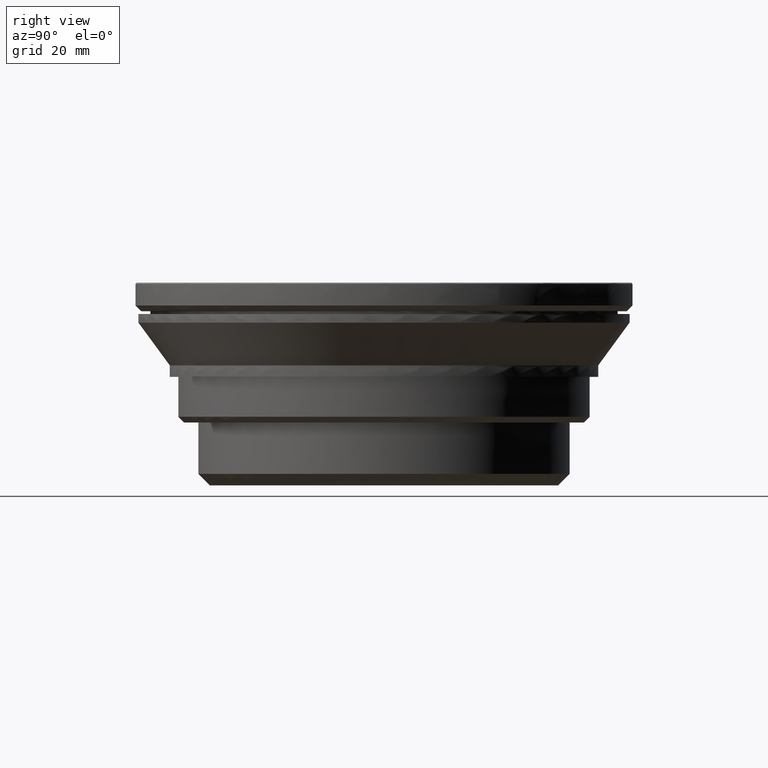
[diagram: clean part render]
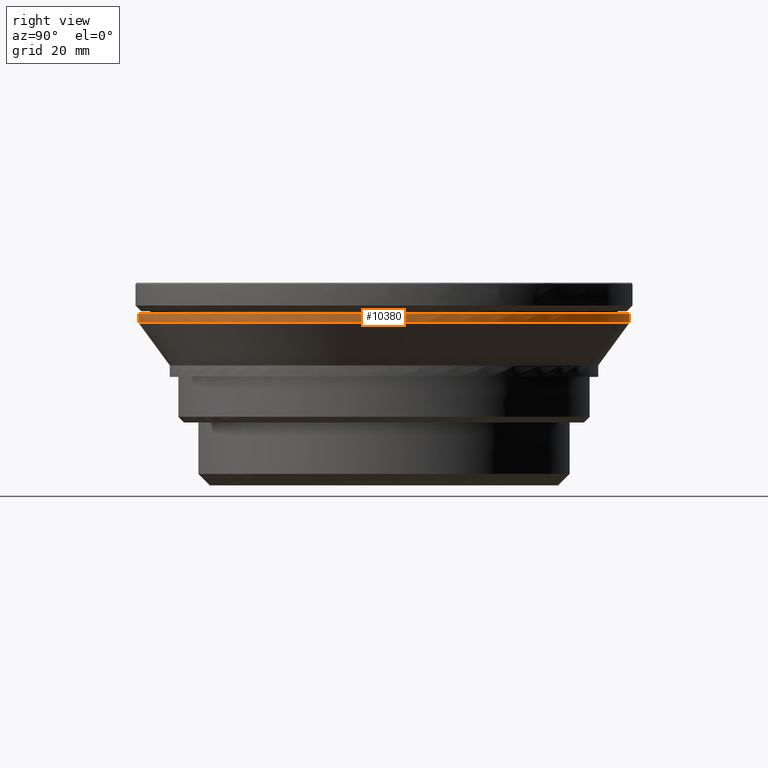
[diagram: same view with one face highlighted and labeled with its STEP entity id]
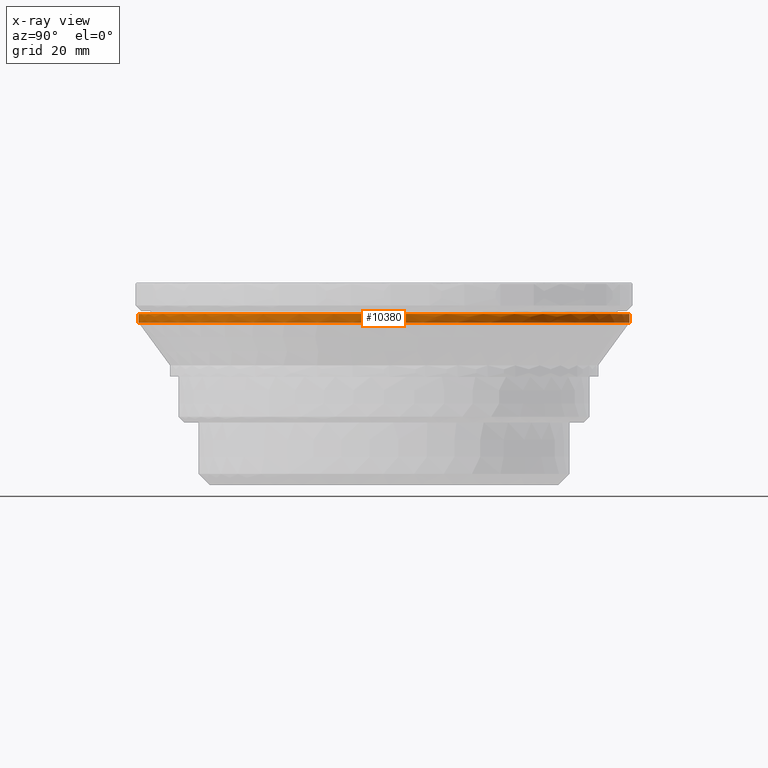
[diagram: x-ray of the same camera — body ghosted, the highlighted face saturated]
A machine part, right view. The second image highlights one B-rep face of the part: STEP entity #10380.
The next image is the same camera in x-ray: the body ghosted, the highlighted face saturated — about 0% of this face is hidden behind the body in this view.
In plain terms, the highlighted face is a freeform B-spline surface patch.
Its self-contained STEP definition (entity closure, byte-faithful):
#68 = CARTESIAN_POINT ( 'NONE',  ( 34.62573433230000575, 25.73980856057000111, 48.52656779054001390 ) ) ;
#204 = CARTESIAN_POINT ( 'NONE',  ( -3.024744083673924777E-10, 42.99995552849512848, 49.52656779053830149 ) ) ;
#225 = CARTESIAN_POINT ( 'NONE',  ( 43.03607866307999785, 3.061887677271999841, 48.97497165960000132 ) ) ;
#293 = CARTESIAN_POINT ( 'NONE',  ( 32.40207242928179454, -28.40910610954777837, 50.02656779054000680 ) ) ;
#297 = CARTESIAN_POINT ( 'NONE',  ( 43.03607866307999785, 3.061887677271999841, 49.57816392147999807 ) ) ;
#364 = CARTESIAN_POINT ( 'NONE',  ( 11.15808490330146086, -41.62293537158313228, 50.02656779053999969 ) ) ;
#368 = CARTESIAN_POINT ( 'NONE',  ( 26.02271475302000425, -34.41362432388000059, 50.18135618336999926 ) ) ;
#439 = CARTESIAN_POINT ( 'NONE',  ( 42.16909083423000482, 9.123979453016000107, 48.97497165960000132 ) ) ;
#511 = CARTESIAN_POINT ( 'NONE',  ( -2.699992339761000171, -42.91514932241999958, 50.18135618336999926 ) ) ;
#1065 = CARTESIAN_POINT ( 'NONE',  ( 34.62573433230000575, 25.73980856057000111, 50.18135618336999926 ) ) ;
#1170 = CARTESIAN_POINT ( 'NONE',  ( 40.45258117051000113, -15.00226314533999883, 48.52656779054001390 ) ) ;
#1186 = CARTESIAN_POINT ( 'NONE',  ( 37.32182281283186853, 21.54190600422668211, 50.02656779054000680 ) ) ;
#1322 = CARTESIAN_POINT ( 'NONE',  ( 42.16909083423000482, 9.123979453016000107, 48.37177939771000013 ) ) ;
#1365 = CARTESIAN_POINT ( 'NONE',  ( 4.403482717900374736E-15, -42.99996084820945441, 48.52658019561960145 ) ) ;
#1371 = CARTESIAN_POINT ( 'NONE',  ( 2.384324692900049905E-15, 42.99997776424759621, 50.02656779053999969 ) ) ;
#1390 = CARTESIAN_POINT ( 'NONE',  ( 43.03607866307999785, -3.061887677271999841, 48.97497165960000132 ) ) ;
#1461 = CARTESIAN_POINT ( 'NONE',  ( 15.33328294012000015, 40.32827360094999847, 50.18135618336999926 ) ) ;
#1533 = CARTESIAN_POINT ( 'NONE',  ( 42.16909083423000482, -9.123979453016000107, 48.97497165960000132 ) ) ;
#1606 = CARTESIAN_POINT ( 'NONE',  ( 15.33328294012000015, -40.32827360094999847, 49.57816392147999807 ) ) ;
#1702 = CARTESIAN_POINT ( 'NONE',  ( -2.699992339760000082, 42.91514932241999958, 48.37177939771000013 ) ) ;
#1750 = CARTESIAN_POINT ( 'NONE',  ( 9.469264809638000102, -42.09290035976000155, 48.97497165960000132 ) ) ;
#1757 = CARTESIAN_POINT ( 'NONE',  ( 2.384324692900049905E-15, 42.99997776424759621, 50.02656779053999969 ) ) ;
#1774 = CARTESIAN_POINT ( 'NONE',  ( -2.699992339760000082, 42.91514932241999958, 48.97497165960000132 ) ) ;
#1828 = CARTESIAN_POINT ( 'NONE',  ( -2.699992339761000171, -42.91514932241999958, 48.37177939771000013 ) ) ;
#1850 = CARTESIAN_POINT ( 'NONE',  ( 9.469264809638000102, 42.09290035976000155, 50.18135618336999926 ) ) ;
#1875 = EDGE_LOOP ( 'NONE', ( #12770, #10562, #2521, #9757 ) ) ;
#1901 = CARTESIAN_POINT ( 'NONE',  ( -2.699992339761000171, -42.91514932241999958, 49.57816392147999807 ) ) ;
#1965 = CARTESIAN_POINT ( 'NONE',  ( 3.028125410685394895E-15, 42.99996084820940467, 48.52658019561970093 ) ) ;
#2121 = CARTESIAN_POINT ( 'NONE',  ( 15.33328294012000015, 40.32827360094999847, 48.52656779054001390 ) ) ;
#2157 = CARTESIAN_POINT ( 'NONE',  ( 42.16909083423000482, -9.123979453016000107, 49.57816392147999807 ) ) ;
#2225 = CARTESIAN_POINT ( 'NONE',  ( 37.92112979750000079, 20.57831717466000043, 49.57816392147999807 ) ) ;
#2249 = EDGE_CURVE ( 'NONE', #12814, #5727, #2453, .T. ) ;
#2453 = B_SPLINE_CURVE_WITH_KNOTS ( 'NONE', 3,
 ( #8902, #3423, #5749, #4584, #14321, #7944, #5680, #10072, #8762, #6575, #1170, #12333, #13362, #6847, #11173, #7812, #5614, #68, #13222, #4517, #11304, #2121, #11239, #3216, #7880, #7672 ),
 .UNSPECIFIED., .F., .F.,
 ( 4, 1, 1, 1, 1, 1, 1, 1, 1, 1, 1, 1, 1, 1, 1, 1, 1, 1, 1, 1, 1, 1, 1, 4 ),
 ( 0.000000000000000000, 0.02521740269227033121, 0.07043479291205091697, 0.1156521831318124277, 0.1608695733515739246, 0.2060869635713672432, 0.2513043537911287539, 0.2965217440108902647, 0.3417391342306517199, 0.3869565244503495594, 0.4321739146703656442, 0.4773913048900634837, 0.5226086951097612676, 0.5678260853294592181, 0.6130434755491570575, 0.6582608657691731979, 0.7034782559888710374, 0.7486956462085687658, 0.7939130364282667163, 0.8391304266482828567, 0.8843478168679808071, 0.9295652070876785356, 0.9747825973073763750, 1.000000000000000000 ),
 .UNSPECIFIED. ) ;
#2480 = CARTESIAN_POINT ( 'NONE',  ( 20.88840373185000132, 37.75120944145999857, 50.18135618336999926 ) ) ;
#2521 = ORIENTED_EDGE ( 'NONE', *, *, #14112, .T. ) ;
#2547 = CARTESIAN_POINT ( 'NONE',  ( 34.18456384517813973, 26.23713403547234435, 50.02656779053999969 ) ) ;
#2551 = CARTESIAN_POINT ( 'NONE',  ( 42.16909083423000482, 9.123979453016000107, 49.57816392147999807 ) ) ;
#2620 = CARTESIAN_POINT ( 'NONE',  ( 5.619698015637597521, 42.72458901911308971, 50.02656779054000680 ) ) ;
#2624 = CARTESIAN_POINT ( 'NONE',  ( 30.63278251530000063, -30.38275593828999988, 50.18135618336999926 ) ) ;
#2790 = FACE_OUTER_BOUND ( 'NONE', #1875, .T. ) ;
#2841 = CARTESIAN_POINT ( 'NONE',  ( 3.414479186604999938, -43.00953997135999884, 48.37177939771000013 ) ) ;
#2937 = CARTESIAN_POINT ( 'NONE',  ( 3.414479186604999938, 43.00953997135999884, 48.97497165960000132 ) ) ;
#3216 = CARTESIAN_POINT ( 'NONE',  ( 4.307171403419838285, 42.87439446863787396, 48.52656779054001390 ) ) ;
#3250 = CARTESIAN_POINT ( 'NONE',  ( 9.469264809638000102, 42.09290035976000155, 48.97497165960000132 ) ) ;
#3296 = B_SPLINE_SURFACE_WITH_KNOTS ( 'NONE', 3, 3, ( 
 ( #4031, #7247, #1774, #1702 ),
 ( #7320, #10610, #6227, #8488 ),
 ( #12946, #6303, #2937, #11852 ),
 ( #1850, #10756, #3250, #8170 ),
 ( #1461, #5984, #6676, #12560 ),
 ( #2480, #11535, #12232, #8797 ),
 ( #7707, #6933, #12635, #10225 ),
 ( #12163, #13584, #9269, #11388 ),
 ( #1065, #3323, #9126, #7776 ),
 ( #8866, #2225, #10439, #11461 ),
 ( #8029, #11138, #5511, #7079 ),
 ( #10367, #2551, #439, #1322 ),
 ( #5769, #297, #225, #4668 ),
 ( #3576, #12488, #1390, #13731 ),
 ( #5840, #2157, #1533, #4739 ),
 ( #10294, #9194, #9966, #3720 ),
 ( #13657, #6609, #11068, #3646 ),
 ( #8099, #7006, #14428, #13258 ),
 ( #2624, #4415, #5914, #4813 ),
 ( #368, #13328, #3863, #8391 ),
 ( #8243, #4958, #6279, #8539 ),
 ( #6057, #1606, #12849, #9560 ),
 ( #6130, #11829, #1750, #12922 ),
 ( #8315, #6356, #7372, #2841 ),
 ( #3938, #4887, #7153, #9416 ),
 ( #511, #1901, #14022, #1828 ) ),
 .UNSPECIFIED., .F., .F., .F.,
 ( 4, 1, 1, 1, 1, 1, 1, 1, 1, 1, 1, 1, 1, 1, 1, 1, 1, 1, 1, 1, 1, 1, 1, 4 ),
 ( 4, 4 ),
 ( -3.204424506661999850, -3.062369882325000070, -2.920315257988999935, -2.778260633653000244, -2.636206009317000110, -2.494151384979999886, -2.352096760643999751, -2.210042136308000060, -2.067987511971999925, -1.925932887635000146, -1.783878263299000011, -1.641823638962999876, -1.499769014626999963, -1.357714390290999829, -1.215659765954000049, -1.073605141618000136, -0.9315505172818000501, -0.7894958929456000751, -0.6474412686093999891, -0.5053866442730999831, -0.3633320199369000081, -0.2212773956006999776, -0.07922277126443999506, 0.06283185307179998957 ),
 ( 6.336539996697000632, 8.146116782356999764 ),
 .UNSPECIFIED. ) ;
#3323 = CARTESIAN_POINT ( 'NONE',  ( 34.62573433230000575, 25.73980856057000111, 49.57816392147999807 ) ) ;
#3423 = CARTESIAN_POINT ( 'NONE',  ( 1.135527612084783255, -42.99994780695022456, 48.52656779054001390 ) ) ;
#3504 = CARTESIAN_POINT ( 'NONE',  ( 41.62294181252619296, -11.15808618194081703, 50.02656779053999259 ) ) ;
#3576 = CARTESIAN_POINT ( 'NONE',  ( 43.03607866307999785, -3.061887677271999841, 50.18135618336999926 ) ) ;
#3646 = CARTESIAN_POINT ( 'NONE',  ( 37.92112979750000079, -20.57831717466000043, 48.37177939771000013 ) ) ;
#3715 = CARTESIAN_POINT ( 'NONE',  ( 32.40207707318958086, 28.40911075196675739, 50.02656779054000680 ) ) ;
#3720 = CARTESIAN_POINT ( 'NONE',  ( 40.45258117051000113, -15.00226314533999883, 48.37177939771000013 ) ) ;
#3863 = CARTESIAN_POINT ( 'NONE',  ( 26.02271475302000425, -34.41362432388000059, 48.97497165960000132 ) ) ;
#3938 = CARTESIAN_POINT ( 'NONE',  ( -0.6678938679840999981, -43.04299812159000282, 50.18135618336999926 ) ) ;
#4031 = CARTESIAN_POINT ( 'NONE',  ( -2.699992339760000082, 42.91514932241999958, 50.18135618336999926 ) ) ;
#4051 = CARTESIAN_POINT ( 'NONE',  ( 4.403482717900374736E-15, -42.99996084820945441, 48.52658019561960145 ) ) ;
#4077 = CARTESIAN_POINT ( 'NONE',  ( 2.823403400073611014, 43.00000000000000000, 50.02656779053999969 ) ) ;
#4415 = CARTESIAN_POINT ( 'NONE',  ( 30.63278251530000063, -30.38275593828999988, 49.57816392147999807 ) ) ;
#4439 = CARTESIAN_POINT ( 'NONE',  ( 1.802542185299634912E-15, -42.99997776424764595, 50.02656779053999969 ) ) ;
#4517 = CARTESIAN_POINT ( 'NONE',  ( 26.02271475302000425, 34.41362432388000059, 48.52656779054001390 ) ) ;
#4584 = CARTESIAN_POINT ( 'NONE',  ( 9.469264809638000102, -42.09290035976000155, 48.52656779054001390 ) ) ;
#4668 = CARTESIAN_POINT ( 'NONE',  ( 43.03607866307999785, 3.061887677271999841, 48.37177939771000013 ) ) ;
#4735 = CARTESIAN_POINT ( 'NONE',  ( 34.18456930553566053, -26.23713768152826731, 50.02656779053999969 ) ) ;
#4739 = CARTESIAN_POINT ( 'NONE',  ( 42.16909083423000482, -9.123979453016000107, 48.37177939771000013 ) ) ;
#4809 = CARTESIAN_POINT ( 'NONE',  ( 40.80730576552461031, -13.84685537705539815, 50.02656779053999259 ) ) ;
#4813 = CARTESIAN_POINT ( 'NONE',  ( 30.63278251530000063, -30.38275593828999988, 48.37177939771000013 ) ) ;
#4887 = CARTESIAN_POINT ( 'NONE',  ( -0.6678938679840999981, -43.04299812159000282, 49.57816392147999807 ) ) ;
#4932 = VERTEX_POINT ( 'NONE', #1757 ) ;
#4958 = CARTESIAN_POINT ( 'NONE',  ( 20.88840373185000132, -37.75120944145999857, 49.57816392147999807 ) ) ;
#5000 = CARTESIAN_POINT ( 'NONE',  ( 1.802542185299634912E-15, -42.99997776424764595, 50.02656779053999969 ) ) ;
#5028 = CARTESIAN_POINT ( 'NONE',  ( 13.84685537758429597, 40.80730576558926970, 50.02656779054000680 ) ) ;
#5093 = B_SPLINE_CURVE_WITH_KNOTS ( 'NONE', 3,
 ( #6928, #5836, #8986, #364, #7895, #10290, #6797, #11254, #5696, #293, #4735, #9190, #10154, #4809, #3504, #9265, #13727, #7959, #12555, #11188, #13653, #8095, #1186, #2547, #3715, #6274, #7220, #8387, #9628, #5028, #6201, #2620, #4077, #10728 ),
 .UNSPECIFIED., .F., .F.,
 ( 4, 2, 2, 2, 2, 2, 2, 2, 2, 2, 2, 2, 2, 2, 2, 2, 4 ),
 ( 0.000000000000000000, 0.06250000000000001388, 0.1250000000000000278, 0.1874999999999999722, 0.2499999999999999445, 0.3124999999999998890, 0.3749999999999998335, 0.4374999999999998890, 0.4999999999999998890, 0.5624999999999998890, 0.6249999999999998890, 0.6874999999999998890, 0.7499999999999998890, 0.8125000000000000000, 0.8750000000000000000, 0.9375000000000000000, 1.000000000000000000 ),
 .UNSPECIFIED. ) ;
#5511 = CARTESIAN_POINT ( 'NONE',  ( 40.45258117051000113, 15.00226314533999883, 48.97497165960000132 ) ) ;
#5614 = CARTESIAN_POINT ( 'NONE',  ( 37.92112979750000079, 20.57831717466000043, 48.52656779054001390 ) ) ;
#5680 = CARTESIAN_POINT ( 'NONE',  ( 26.02271475302000425, -34.41362432388000059, 48.52656779054001390 ) ) ;
#5696 = CARTESIAN_POINT ( 'NONE',  ( 28.40911075278840059, -32.40207707246823787, 50.02656779053999969 ) ) ;
#5727 = VERTEX_POINT ( 'NONE', #1965 ) ;
#5749 = CARTESIAN_POINT ( 'NONE',  ( 4.307171403425440914, -42.87439446863702130, 48.52656779054001390 ) ) ;
#5769 = CARTESIAN_POINT ( 'NONE',  ( 43.03607866307999785, 3.061887677271999841, 50.18135618336999926 ) ) ;
#5836 = CARTESIAN_POINT ( 'NONE',  ( 2.823437059989962972, -43.00000000000001421, 50.02656779053999969 ) ) ;
#5840 = CARTESIAN_POINT ( 'NONE',  ( 42.16909083423000482, -9.123979453016000107, 50.18135618336999926 ) ) ;
#5914 = CARTESIAN_POINT ( 'NONE',  ( 30.63278251530000063, -30.38275593828999988, 48.97497165960000132 ) ) ;
#5984 = CARTESIAN_POINT ( 'NONE',  ( 15.33328294012000015, 40.32827360094999847, 49.57816392147999807 ) ) ;
#6057 = CARTESIAN_POINT ( 'NONE',  ( 15.33328294012000015, -40.32827360094999847, 50.18135618336999926 ) ) ;
#6130 = CARTESIAN_POINT ( 'NONE',  ( 9.469264809638000102, -42.09290035976000155, 50.18135618336999926 ) ) ;
#6201 = CARTESIAN_POINT ( 'NONE',  ( 11.15806967774632597, 41.62294509556541300, 50.02656779053999969 ) ) ;
#6227 = CARTESIAN_POINT ( 'NONE',  ( -0.6678938679840999981, 43.04299812159000282, 48.97497165960000132 ) ) ;
#6274 = CARTESIAN_POINT ( 'NONE',  ( 28.40910610884451870, 32.40207243008537574, 50.02656779054000680 ) ) ;
#6279 = CARTESIAN_POINT ( 'NONE',  ( 20.88840373185000132, -37.75120944145999857, 48.97497165960000132 ) ) ;
#6303 = CARTESIAN_POINT ( 'NONE',  ( 3.414479186604999938, 43.00953997135999884, 49.57816392147999807 ) ) ;
#6324 = CARTESIAN_POINT ( 'NONE',  ( -3.024045857474843595E-10, -42.99995552849526348, 49.02656779054168368 ) ) ;
#6356 = CARTESIAN_POINT ( 'NONE',  ( 3.414479186604999938, -43.00953997135999884, 49.57816392147999807 ) ) ;
#6575 = CARTESIAN_POINT ( 'NONE',  ( 37.92112979750000079, -20.57831717466000043, 48.52656779054001390 ) ) ;
#6609 = CARTESIAN_POINT ( 'NONE',  ( 37.92112979750000079, -20.57831717466000043, 49.57816392147999807 ) ) ;
#6676 = CARTESIAN_POINT ( 'NONE',  ( 15.33328294012000015, 40.32827360094999847, 48.97497165960000132 ) ) ;
#6797 = CARTESIAN_POINT ( 'NONE',  ( 21.54190600374150932, -37.32182281322272388, 50.02656779053999969 ) ) ;
#6847 = CARTESIAN_POINT ( 'NONE',  ( 43.03607866307999785, 3.061887677271999841, 48.52656779054001390 ) ) ;
#6928 = CARTESIAN_POINT ( 'NONE',  ( 1.802542185299634912E-15, -42.99997776424764595, 50.02656779053999969 ) ) ;
#6933 = CARTESIAN_POINT ( 'NONE',  ( 26.02271475302000425, 34.41362432388000059, 49.57816392147999807 ) ) ;
#7006 = CARTESIAN_POINT ( 'NONE',  ( 34.62573433230000575, -25.73980856057000111, 49.57816392147999807 ) ) ;
#7079 = CARTESIAN_POINT ( 'NONE',  ( 40.45258117051000113, 15.00226314533999883, 48.37177939771000013 ) ) ;
#7153 = CARTESIAN_POINT ( 'NONE',  ( -0.6678938679840999981, -43.04299812159000282, 48.97497165960000132 ) ) ;
#7220 = CARTESIAN_POINT ( 'NONE',  ( 26.23713768174657801, 34.18456930572447305, 50.02656779053999969 ) ) ;
#7247 = CARTESIAN_POINT ( 'NONE',  ( -2.699992339760000082, 42.91514932241999958, 49.57816392147999807 ) ) ;
#7266 = CARTESIAN_POINT ( 'NONE',  ( -3.024045857474843078E-10, -42.99995552849525637, 49.52656779053830149 ) ) ;
#7320 = CARTESIAN_POINT ( 'NONE',  ( -0.6678938679840999981, 43.04299812159000282, 50.18135618336999926 ) ) ;
#7372 = CARTESIAN_POINT ( 'NONE',  ( 3.414479186604999938, -43.00953997135999884, 48.97497165960000132 ) ) ;
#7672 = CARTESIAN_POINT ( 'NONE',  ( 3.028125410685394895E-15, 42.99996084820940467, 48.52658019561970093 ) ) ;
#7707 = CARTESIAN_POINT ( 'NONE',  ( 26.02271475302000425, 34.41362432388000059, 50.18135618336999926 ) ) ;
#7776 = CARTESIAN_POINT ( 'NONE',  ( 34.62573433230000575, 25.73980856057000111, 48.37177939771000013 ) ) ;
#7812 = CARTESIAN_POINT ( 'NONE',  ( 40.45258117051000113, 15.00226314533999883, 48.52656779054001390 ) ) ;
#7879 = CARTESIAN_POINT ( 'NONE',  ( -3.024744083673924777E-10, 42.99995552849512848, 49.02656779054167657 ) ) ;
#7880 = CARTESIAN_POINT ( 'NONE',  ( 1.135527612071784764, 42.99994780695071483, 48.52656779054001390 ) ) ;
#7895 = CARTESIAN_POINT ( 'NONE',  ( 13.84685788959852992, -40.80731183218572511, 50.02656779053999259 ) ) ;
#7944 = CARTESIAN_POINT ( 'NONE',  ( 20.88840373185000132, -37.75120944145999857, 48.52656779054001390 ) ) ;
#7959 = CARTESIAN_POINT ( 'NONE',  ( 42.99999671687922387, 2.823453563381599807, 50.02656779053999969 ) ) ;
#7982 = B_SPLINE_CURVE_WITH_KNOTS ( 'NONE', 3,
 ( #5000, #7266, #6324, #4051 ),
 .UNSPECIFIED., .F., .F.,
 ( 4, 4 ),
 ( 0.000000000000000000, 1.000000000000000000 ),
 .UNSPECIFIED. ) ;
#8029 = CARTESIAN_POINT ( 'NONE',  ( 40.45258117051000113, 15.00226314533999883, 50.18135618336999926 ) ) ;
#8095 = CARTESIAN_POINT ( 'NONE',  ( 38.64632796429661710, 19.06391729294803739, 50.02656779053999969 ) ) ;
#8099 = CARTESIAN_POINT ( 'NONE',  ( 34.62573433230000575, -25.73980856057000111, 50.18135618336999926 ) ) ;
#8170 = CARTESIAN_POINT ( 'NONE',  ( 9.469264809638000102, 42.09290035976000155, 48.37177939771000013 ) ) ;
#8243 = CARTESIAN_POINT ( 'NONE',  ( 20.88840373185000132, -37.75120944145999857, 50.18135618336999926 ) ) ;
#8315 = CARTESIAN_POINT ( 'NONE',  ( 3.414479186604999938, -43.00953997135999884, 50.18135618336999926 ) ) ;
#8387 = CARTESIAN_POINT ( 'NONE',  ( 21.54190235793123875, 37.32181735229973185, 50.02656779053998548 ) ) ;
#8391 = CARTESIAN_POINT ( 'NONE',  ( 26.02271475302000425, -34.41362432388000059, 48.37177939771000013 ) ) ;
#8429 = VERTEX_POINT ( 'NONE', #4439 ) ;
#8488 = CARTESIAN_POINT ( 'NONE',  ( -0.6678938679840999981, 43.04299812159000282, 48.37177939771000013 ) ) ;
#8539 = CARTESIAN_POINT ( 'NONE',  ( 20.88840373185000132, -37.75120944145999857, 48.37177939771000013 ) ) ;
#8762 = CARTESIAN_POINT ( 'NONE',  ( 34.62573433230000575, -25.73980856057000111, 48.52656779054001390 ) ) ;
#8797 = CARTESIAN_POINT ( 'NONE',  ( 20.88840373185000132, 37.75120944145999857, 48.37177939771000013 ) ) ;
#8866 = CARTESIAN_POINT ( 'NONE',  ( 37.92112979750000079, 20.57831717466000043, 50.18135618336999926 ) ) ;
#8902 = CARTESIAN_POINT ( 'NONE',  ( 4.403482717900374736E-15, -42.99996084820945441, 48.52658019561960145 ) ) ;
#8986 = CARTESIAN_POINT ( 'NONE',  ( 5.619682790132501715, -42.72459874308540151, 50.02656779053999969 ) ) ;
#9126 = CARTESIAN_POINT ( 'NONE',  ( 34.62573433230000575, 25.73980856057000111, 48.97497165960000132 ) ) ;
#9190 = CARTESIAN_POINT ( 'NONE',  ( 37.32181735250273391, -21.54190235812833620, 50.02656779054000680 ) ) ;
#9194 = CARTESIAN_POINT ( 'NONE',  ( 40.45258117051000113, -15.00226314533999883, 49.57816392147999807 ) ) ;
#9265 = CARTESIAN_POINT ( 'NONE',  ( 42.72459230215719828, -5.619681511418065156, 50.02656779054000680 ) ) ;
#9269 = CARTESIAN_POINT ( 'NONE',  ( 30.63278251530000063, 30.38275593828999988, 48.97497165960000132 ) ) ;
#9416 = CARTESIAN_POINT ( 'NONE',  ( -0.6678938679840999981, -43.04299812159000282, 48.37177939771000013 ) ) ;
#9521 = EDGE_CURVE ( 'NONE', #8429, #12814, #7982, .T. ) ;
#9560 = CARTESIAN_POINT ( 'NONE',  ( 15.33328294012000015, -40.32827360094999847, 48.37177939771000013 ) ) ;
#9628 = CARTESIAN_POINT ( 'NONE',  ( 19.06391980580749745, 38.64633403038386206, 50.02656779053999969 ) ) ;
#9757 = ORIENTED_EDGE ( 'NONE', *, *, #13044, .F. ) ;
#9966 = CARTESIAN_POINT ( 'NONE',  ( 40.45258117051000113, -15.00226314533999883, 48.97497165960000132 ) ) ;
#10072 = CARTESIAN_POINT ( 'NONE',  ( 30.63278251530000063, -30.38275593828999988, 48.52656779054001390 ) ) ;
#10154 = CARTESIAN_POINT ( 'NONE',  ( 38.64633403045829141, -19.06391980631278926, 50.02656779053999969 ) ) ;
#10225 = CARTESIAN_POINT ( 'NONE',  ( 26.02271475302000425, 34.41362432388000059, 48.37177939771000013 ) ) ;
#10290 = CARTESIAN_POINT ( 'NONE',  ( 19.06391729384046485, -38.64632796376792356, 50.02656779053999969 ) ) ;
#10294 = CARTESIAN_POINT ( 'NONE',  ( 40.45258117051000113, -15.00226314533999883, 50.18135618336999926 ) ) ;
#10367 = CARTESIAN_POINT ( 'NONE',  ( 42.16909083423000482, 9.123979453016000107, 50.18135618336999926 ) ) ;
#10380 = ADVANCED_FACE ( 'NONE', ( #2790 ), #3296, .T. ) ;
#10439 = CARTESIAN_POINT ( 'NONE',  ( 37.92112979750000079, 20.57831717466000043, 48.97497165960000132 ) ) ;
#10562 = ORIENTED_EDGE ( 'NONE', *, *, #2249, .T. ) ;
#10610 = CARTESIAN_POINT ( 'NONE',  ( -0.6678938679840999981, 43.04299812159000282, 49.57816392147999807 ) ) ;
#10728 = CARTESIAN_POINT ( 'NONE',  ( 2.384324692900049905E-15, 42.99997776424759621, 50.02656779053999969 ) ) ;
#10756 = CARTESIAN_POINT ( 'NONE',  ( 9.469264809638000102, 42.09290035976000155, 49.57816392147999807 ) ) ;
#11068 = CARTESIAN_POINT ( 'NONE',  ( 37.92112979750000079, -20.57831717466000043, 48.97497165960000132 ) ) ;
#11138 = CARTESIAN_POINT ( 'NONE',  ( 40.45258117051000113, 15.00226314533999883, 49.57816392147999807 ) ) ;
#11173 = CARTESIAN_POINT ( 'NONE',  ( 42.16909083423000482, 9.123979453016000107, 48.52656779054001390 ) ) ;
#11188 = CARTESIAN_POINT ( 'NONE',  ( 41.62293537244524799, 11.15808490083393245, 50.02656779053999969 ) ) ;
#11239 = CARTESIAN_POINT ( 'NONE',  ( 9.469264809638000102, 42.09290035976000155, 48.52656779054001390 ) ) ;
#11254 = CARTESIAN_POINT ( 'NONE',  ( 26.23713403597877658, -34.18456384477318721, 50.02656779053999259 ) ) ;
#11304 = CARTESIAN_POINT ( 'NONE',  ( 20.88840373185000132, 37.75120944145999857, 48.52656779054001390 ) ) ;
#11388 = CARTESIAN_POINT ( 'NONE',  ( 30.63278251530000063, 30.38275593828999988, 48.37177939771000013 ) ) ;
#11461 = CARTESIAN_POINT ( 'NONE',  ( 37.92112979750000079, 20.57831717466000043, 48.37177939771000013 ) ) ;
#11535 = CARTESIAN_POINT ( 'NONE',  ( 20.88840373185000132, 37.75120944145999857, 49.57816392147999807 ) ) ;
#11829 = CARTESIAN_POINT ( 'NONE',  ( 9.469264809638000102, -42.09290035976000155, 49.57816392147999807 ) ) ;
#11852 = CARTESIAN_POINT ( 'NONE',  ( 3.414479186604999938, 43.00953997135999884, 48.37177939771000013 ) ) ;
#12163 = CARTESIAN_POINT ( 'NONE',  ( 30.63278251530000063, 30.38275593828999988, 50.18135618336999926 ) ) ;
#12232 = CARTESIAN_POINT ( 'NONE',  ( 20.88840373185000132, 37.75120944145999857, 48.97497165960000132 ) ) ;
#12332 = CARTESIAN_POINT ( 'NONE',  ( 3.028125410685394895E-15, 42.99996084820940467, 48.52658019561970093 ) ) ;
#12333 = CARTESIAN_POINT ( 'NONE',  ( 42.16909083423000482, -9.123979453016000107, 48.52656779054001390 ) ) ;
#12488 = CARTESIAN_POINT ( 'NONE',  ( 43.03607866307999785, -3.061887677271999841, 49.57816392147999807 ) ) ;
#12555 = CARTESIAN_POINT ( 'NONE',  ( 42.72459874222824538, 5.619682792575015462, 50.02656779053999969 ) ) ;
#12560 = CARTESIAN_POINT ( 'NONE',  ( 15.33328294012000015, 40.32827360094999847, 48.37177939771000013 ) ) ;
#12635 = CARTESIAN_POINT ( 'NONE',  ( 26.02271475302000425, 34.41362432388000059, 48.97497165960000132 ) ) ;
#12770 = ORIENTED_EDGE ( 'NONE', *, *, #9521, .T. ) ;
#12814 = VERTEX_POINT ( 'NONE', #1365 ) ;
#12849 = CARTESIAN_POINT ( 'NONE',  ( 15.33328294012000015, -40.32827360094999847, 48.97497165960000132 ) ) ;
#12922 = CARTESIAN_POINT ( 'NONE',  ( 9.469264809638000102, -42.09290035976000155, 48.37177939771000013 ) ) ;
#12938 = B_SPLINE_CURVE_WITH_KNOTS ( 'NONE', 3,
 ( #12332, #7879, #204, #1371 ),
 .UNSPECIFIED., .F., .F.,
 ( 4, 4 ),
 ( 0.000000000000000000, 1.000000000000000000 ),
 .UNSPECIFIED. ) ;
#12946 = CARTESIAN_POINT ( 'NONE',  ( 3.414479186604999938, 43.00953997135999884, 50.18135618336999926 ) ) ;
#13044 = EDGE_CURVE ( 'NONE', #8429, #4932, #5093, .T. ) ;
#13222 = CARTESIAN_POINT ( 'NONE',  ( 30.63278251530000063, 30.38275593828999988, 48.52656779054001390 ) ) ;
#13258 = CARTESIAN_POINT ( 'NONE',  ( 34.62573433230000575, -25.73980856057000111, 48.37177939771000013 ) ) ;
#13328 = CARTESIAN_POINT ( 'NONE',  ( 26.02271475302000425, -34.41362432388000059, 49.57816392147999807 ) ) ;
#13362 = CARTESIAN_POINT ( 'NONE',  ( 43.03607866307999785, -3.061887677271999841, 48.52656779054001390 ) ) ;
#13584 = CARTESIAN_POINT ( 'NONE',  ( 30.63278251530000063, 30.38275593828999988, 49.57816392147999807 ) ) ;
#13653 = CARTESIAN_POINT ( 'NONE',  ( 40.80731183166668785, 13.84685789046737625, 50.02656779053999969 ) ) ;
#13657 = CARTESIAN_POINT ( 'NONE',  ( 37.92112979750000079, -20.57831717466000043, 50.18135618336999926 ) ) ;
#13727 = CARTESIAN_POINT ( 'NONE',  ( 43.00000328312080455, -2.823453563356079776, 50.02656779053999969 ) ) ;
#13731 = CARTESIAN_POINT ( 'NONE',  ( 43.03607866307999785, -3.061887677271999841, 48.37177939771000013 ) ) ;
#14022 = CARTESIAN_POINT ( 'NONE',  ( -2.699992339761000171, -42.91514932241999958, 48.97497165960000132 ) ) ;
#14112 = EDGE_CURVE ( 'NONE', #5727, #4932, #12938, .T. ) ;
#14321 = CARTESIAN_POINT ( 'NONE',  ( 15.33328294012000015, -40.32827360094999847, 48.52656779054001390 ) ) ;
#14428 = CARTESIAN_POINT ( 'NONE',  ( 34.62573433230000575, -25.73980856057000111, 48.97497165960000132 ) ) ;